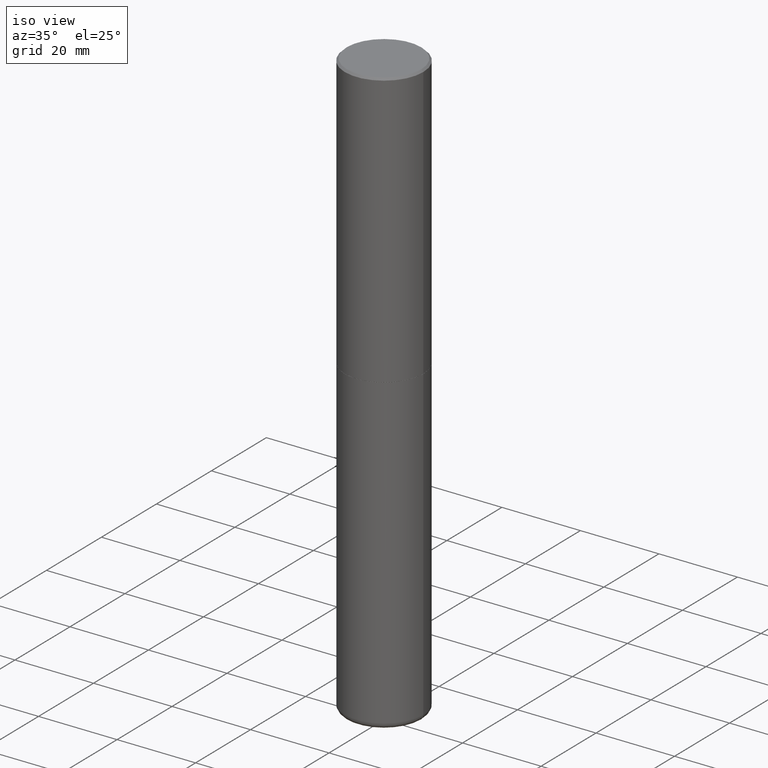
[diagram: clean part render]
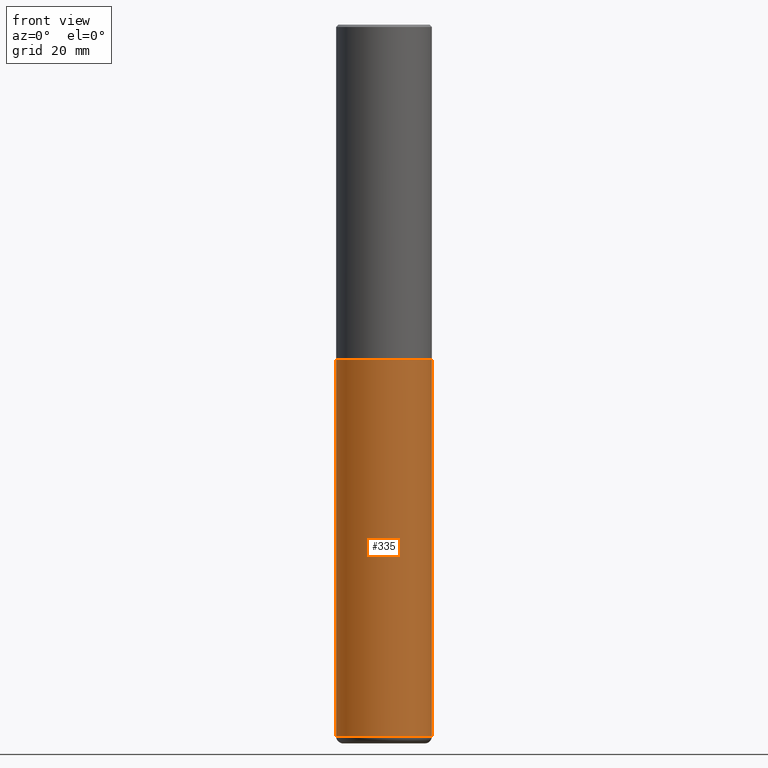
[diagram: tour spotlight — one face highlighted and labeled with its STEP entity id]
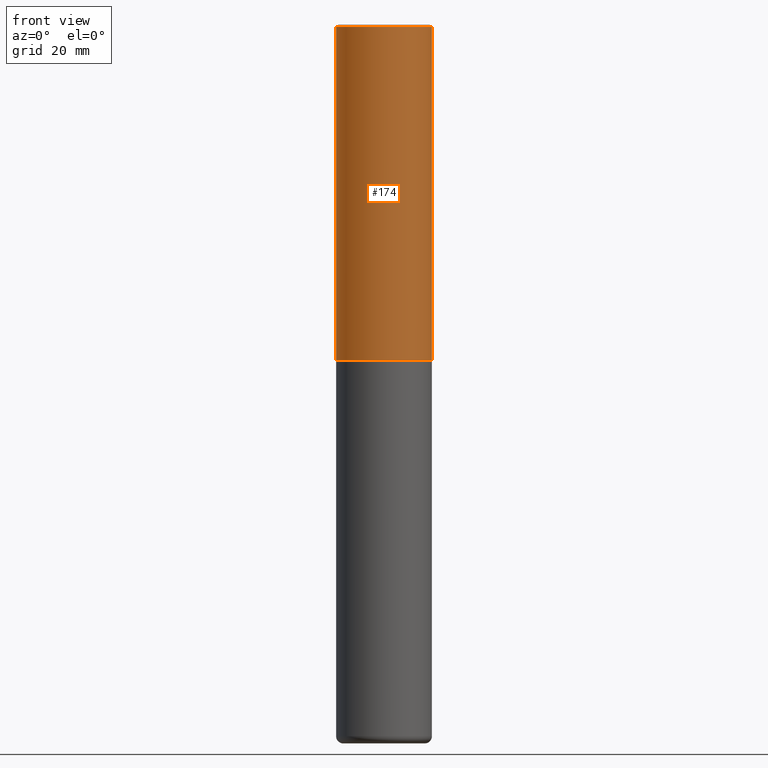
[diagram: tour spotlight — one face highlighted and labeled with its STEP entity id]
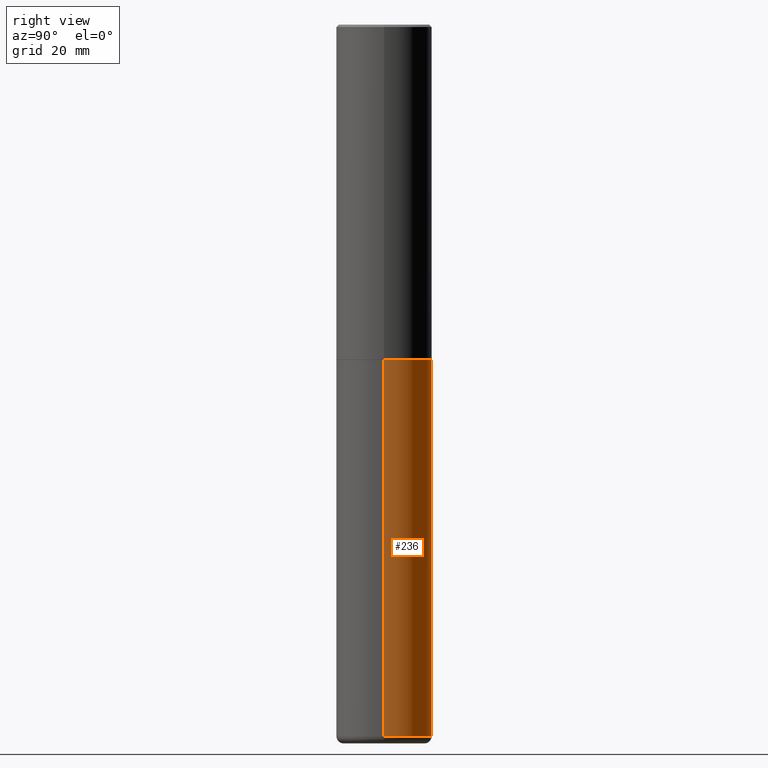
[diagram: tour spotlight — one face highlighted and labeled with its STEP entity id]
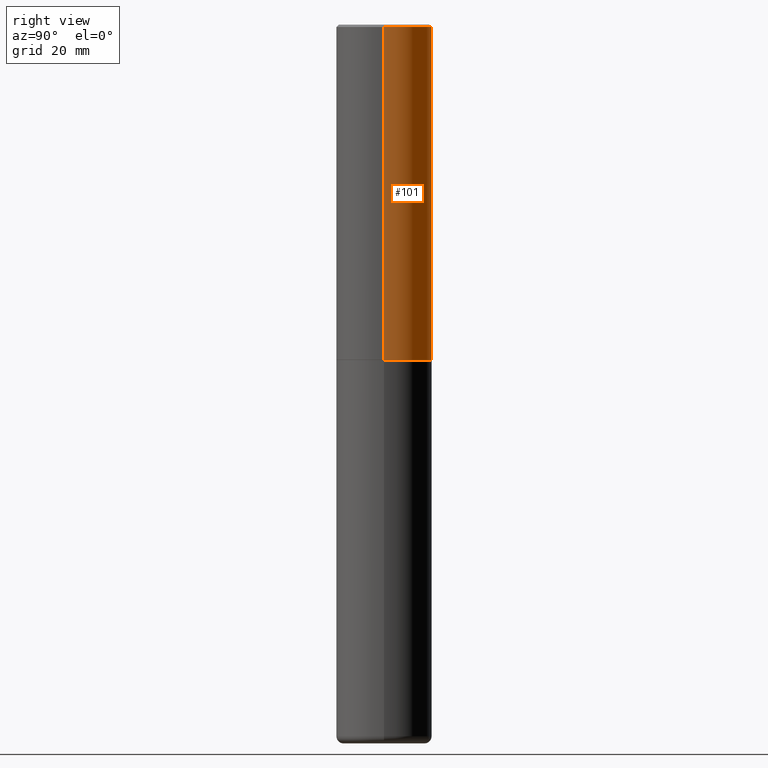
[diagram: tour spotlight — one face highlighted and labeled with its STEP entity id]
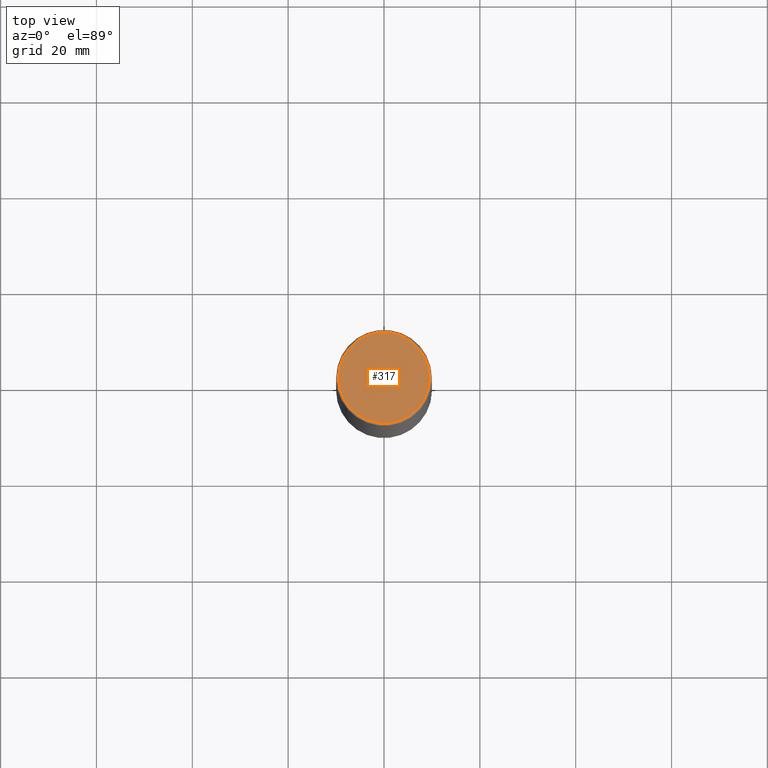
[diagram: tour spotlight — one face highlighted and labeled with its STEP entity id]
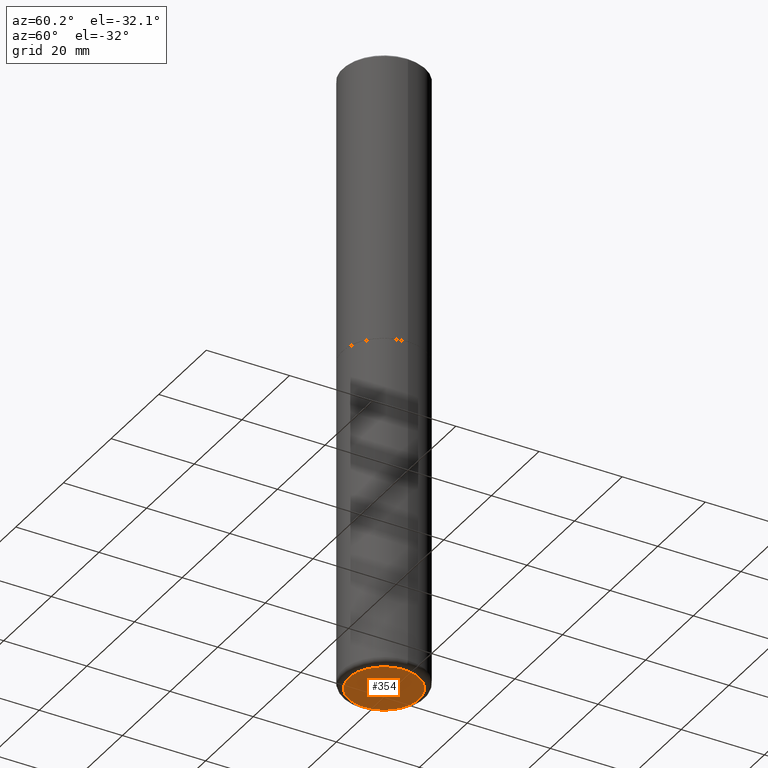
[diagram: tour spotlight — one face highlighted and labeled with its STEP entity id]
A machine part: a face-by-face anatomy tour. The part has 14 B-rep faces; the first image is the clean iso view, then the 6 largest visible faces are spotlighted one at a time (largest first), each with its STEP entity span.

Face 1 — front view, entity #335. In plain terms, the highlighted cylindrical surface (partial cylindrical patch) has radius 10 mm, axis along (-0, 0, 1).
Definition (entity closure, byte-faithful):
#3 = FACE_OUTER_BOUND ( 'NONE', #157, .T. ) ;
#6 = LINE ( 'NONE', #253, #263 ) ;
#11 = CARTESIAN_POINT ( 'NONE',  ( 0.3937000000000000499, -1.237136582792290287E-14, -2.755899999999998240 ) ) ;
#32 = CARTESIAN_POINT ( 'NONE',  ( -0.3937000000000002164, -1.761518974872504126E-14, -5.846399999999999153 ) ) ;
#37 = EDGE_CURVE ( 'NONE', #75, #260, #6, .T. ) ;
#38 = DIRECTION ( 'NONE',  ( 1.000000000000000000, -6.982962677686266711E-15, 0.000000000000000000 ) ) ;
#54 = ORIENTED_EDGE ( 'NONE', *, *, #37, .F. ) ;
#56 = DIRECTION ( 'NONE',  ( 1.000000000000000000, -6.982962677686266711E-15, 4.876176775795935793E-29 ) ) ;
#59 = AXIS2_PLACEMENT_3D ( 'NONE', #134, #235, #105 ) ;
#72 = LINE ( 'NONE', #76, #234 ) ;
#75 = VERTEX_POINT ( 'NONE', #32 ) ;
#76 = CARTESIAN_POINT ( 'NONE',  ( 0.3937000000000001054, -2.749192406205084005E-15, 1.919750796630860452E-29 ) ) ;
#80 = CARTESIAN_POINT ( 'NONE',  ( -0.3937000000000000499, -1.221997820987767425E-14, -2.755899999999998240 ) ) ;
#83 = EDGE_CURVE ( 'NONE', #75, #207, #401, .T. ) ;
#105 = DIRECTION ( 'NONE',  ( 1.000000000000000000, -6.982962677686267499E-15, 0.000000000000000000 ) ) ;
#115 = ORIENTED_EDGE ( 'NONE', *, *, #83, .T. ) ;
#134 = CARTESIAN_POINT ( 'NONE',  ( 6.739467482965614869E-29, -9.622173421717819657E-15, -2.755899999999998240 ) ) ;
#148 = VERTEX_POINT ( 'NONE', #11 ) ;
#151 = CARTESIAN_POINT ( 'NONE',  ( 0.000000000000000000, 0.000000000000000000, 0.000000000000000000 ) ) ;
#157 = EDGE_LOOP ( 'NONE', ( #54, #115, #180, #255 ) ) ;
#180 = ORIENTED_EDGE ( 'NONE', *, *, #410, .T. ) ;
#206 = DIRECTION ( 'NONE',  ( -2.445468806185136877E-29, 3.491481338843145188E-15, 1.000000000000000000 ) ) ;
#207 = VERTEX_POINT ( 'NONE', #243 ) ;
#222 = DIRECTION ( 'NONE',  ( -2.445468806185136597E-29, 3.491481338843145583E-15, 1.000000000000000000 ) ) ;
#231 = CARTESIAN_POINT ( 'NONE',  ( 1.429718882848077913E-28, -2.041259649941256157E-14, -5.846399999999999153 ) ) ;
#234 = VECTOR ( 'NONE', #206, 39.37007874015748143 ) ;
#235 = DIRECTION ( 'NONE',  ( -2.445468806185136597E-29, 3.491481338843145583E-15, 1.000000000000000000 ) ) ;
#243 = CARTESIAN_POINT ( 'NONE',  ( 0.3937000000000002164, -2.316178890561765109E-14, -5.846399999999999153 ) ) ;
#249 = AXIS2_PLACEMENT_3D ( 'NONE', #151, #222, #56 ) ;
#253 = CARTESIAN_POINT ( 'NONE',  ( -0.3937000000000001054, 2.797406750687515181E-15, -1.936584745033357016E-29 ) ) ;
#255 = ORIENTED_EDGE ( 'NONE', *, *, #371, .F. ) ;
#260 = VERTEX_POINT ( 'NONE', #80 ) ;
#263 = VECTOR ( 'NONE', #380, 39.37007874015748143 ) ;
#335 = ADVANCED_FACE ( 'NONE', ( #3 ), #386, .T. ) ;
#356 = AXIS2_PLACEMENT_3D ( 'NONE', #231, #394, #38 ) ;
#371 = EDGE_CURVE ( 'NONE', #260, #148, #385, .T. ) ;
#380 = DIRECTION ( 'NONE',  ( -2.445468806185136877E-29, 3.491481338843145188E-15, 1.000000000000000000 ) ) ;
#385 = CIRCLE ( 'NONE', #59, 0.3937000000000000499 ) ;
#386 = CYLINDRICAL_SURFACE ( 'NONE', #249, 0.3937000000000001054 ) ;
#394 = DIRECTION ( 'NONE',  ( -2.445468806185136597E-29, 3.491481338843145583E-15, 1.000000000000000000 ) ) ;
#401 = CIRCLE ( 'NONE', #356, 0.3937000000000001054 ) ;
#410 = EDGE_CURVE ( 'NONE', #207, #148, #72, .T. ) ;

Face 2 — front view, entity #174. In plain terms, the highlighted cylindrical surface (partial cylindrical patch) has radius 10 mm, axis along (-0, 0, 1).
Definition (entity closure, byte-faithful):
#15 = CARTESIAN_POINT ( 'NONE',  ( 0.3937000000000002164, -2.749192406205084794E-15, 1.919750796630861012E-29 ) ) ;
#66 = DIRECTION ( 'NONE',  ( -2.445468806185136597E-29, 3.491481338843145583E-15, 1.000000000000000000 ) ) ;
#70 = CARTESIAN_POINT ( 'NONE',  ( -0.3937000000000000499, 2.679362779428219918E-15, -0.02000000000000008715 ) ) ;
#81 = EDGE_LOOP ( 'NONE', ( #93, #214, #312, #87 ) ) ;
#87 = ORIENTED_EDGE ( 'NONE', *, *, #177, .F. ) ;
#90 = EDGE_CURVE ( 'NONE', #291, #293, #367, .T. ) ;
#93 = ORIENTED_EDGE ( 'NONE', *, *, #121, .F. ) ;
#104 = FACE_OUTER_BOUND ( 'NONE', #81, .T. ) ;
#107 = DIRECTION ( 'NONE',  ( -2.445468806185136877E-29, 3.491481338843145188E-15, 1.000000000000000000 ) ) ;
#121 = EDGE_CURVE ( 'NONE', #291, #160, #170, .T. ) ;
#137 = DIRECTION ( 'NONE',  ( 1.000000000000000000, -6.982962677686265922E-15, 0.000000000000000000 ) ) ;
#143 = AXIS2_PLACEMENT_3D ( 'NONE', #269, #66, #264 ) ;
#160 = VERTEX_POINT ( 'NONE', #70 ) ;
#170 = LINE ( 'NONE', #199, #391 ) ;
#171 = DIRECTION ( 'NONE',  ( -2.445468806185136597E-29, 3.491481338843145583E-15, 1.000000000000000000 ) ) ;
#174 = ADVANCED_FACE ( 'NONE', ( #104 ), #364, .T. ) ;
#177 = EDGE_CURVE ( 'NONE', #160, #208, #314, .T. ) ;
#199 = CARTESIAN_POINT ( 'NONE',  ( -0.3937000000000002164, 2.797406750687515970E-15, -1.936584745033357576E-29 ) ) ;
#201 = CARTESIAN_POINT ( 'NONE',  ( 0.000000000000000000, 0.000000000000000000, 0.000000000000000000 ) ) ;
#204 = DIRECTION ( 'NONE',  ( -2.445468806185136877E-29, 3.491481338843145188E-15, 1.000000000000000000 ) ) ;
#208 = VERTEX_POINT ( 'NONE', #211 ) ;
#211 = CARTESIAN_POINT ( 'NONE',  ( 0.3937000000000000499, -2.770807688499515734E-15, -0.02000000000000008715 ) ) ;
#214 = ORIENTED_EDGE ( 'NONE', *, *, #90, .T. ) ;
#226 = VECTOR ( 'NONE', #107, 39.37007874015748143 ) ;
#246 = CARTESIAN_POINT ( 'NONE',  ( 0.3937000000000004385, -1.236787434658406144E-14, -2.754899999999998350 ) ) ;
#257 = EDGE_CURVE ( 'NONE', #293, #208, #311, .T. ) ;
#264 = DIRECTION ( 'NONE',  ( 1.000000000000000000, -6.982962677686265922E-15, 0.000000000000000000 ) ) ;
#269 = CARTESIAN_POINT ( 'NONE',  ( 6.737022014159429266E-29, -9.618681940378976650E-15, -2.754899999999998350 ) ) ;
#281 = CARTESIAN_POINT ( 'NONE',  ( -0.3937000000000004385, -2.046849032890400849E-15, -2.754899999999998350 ) ) ;
#291 = VERTEX_POINT ( 'NONE', #281 ) ;
#293 = VERTEX_POINT ( 'NONE', #246 ) ;
#300 = CARTESIAN_POINT ( 'NONE',  ( 4.890937612370294178E-31, -6.982962677686321191E-17, -0.02000000000000008715 ) ) ;
#311 = LINE ( 'NONE', #15, #226 ) ;
#312 = ORIENTED_EDGE ( 'NONE', *, *, #257, .T. ) ;
#314 = CIRCLE ( 'NONE', #374, 0.3937000000000000499 ) ;
#332 = DIRECTION ( 'NONE',  ( 1.000000000000000000, -6.982962677686266711E-15, 4.876176775795935793E-29 ) ) ;
#336 = DIRECTION ( 'NONE',  ( -2.445468806185136597E-29, 3.491481338843145583E-15, 1.000000000000000000 ) ) ;
#364 = CYLINDRICAL_SURFACE ( 'NONE', #407, 0.3937000000000002164 ) ;
#367 = CIRCLE ( 'NONE', #143, 0.3937000000000004385 ) ;
#374 = AXIS2_PLACEMENT_3D ( 'NONE', #300, #171, #137 ) ;
#391 = VECTOR ( 'NONE', #204, 39.37007874015748143 ) ;
#407 = AXIS2_PLACEMENT_3D ( 'NONE', #201, #336, #332 ) ;

Face 3 — right view, entity #236. In plain terms, the highlighted cylindrical surface (partial cylindrical patch) has radius 10 mm, axis along (-0, 0, 1).
Definition (entity closure, byte-faithful):
#6 = LINE ( 'NONE', #253, #263 ) ;
#11 = CARTESIAN_POINT ( 'NONE',  ( 0.3937000000000000499, -1.237136582792290287E-14, -2.755899999999998240 ) ) ;
#13 = CIRCLE ( 'NONE', #270, 0.3937000000000000499 ) ;
#24 = CIRCLE ( 'NONE', #321, 0.3937000000000001054 ) ;
#32 = CARTESIAN_POINT ( 'NONE',  ( -0.3937000000000002164, -1.761518974872504126E-14, -5.846399999999999153 ) ) ;
#37 = EDGE_CURVE ( 'NONE', #75, #260, #6, .T. ) ;
#72 = LINE ( 'NONE', #76, #234 ) ;
#75 = VERTEX_POINT ( 'NONE', #32 ) ;
#76 = CARTESIAN_POINT ( 'NONE',  ( 0.3937000000000001054, -2.749192406205084005E-15, 1.919750796630860452E-29 ) ) ;
#80 = CARTESIAN_POINT ( 'NONE',  ( -0.3937000000000000499, -1.221997820987767425E-14, -2.755899999999998240 ) ) ;
#109 = DIRECTION ( 'NONE',  ( -2.445468806185136597E-29, 3.491481338843145583E-15, 1.000000000000000000 ) ) ;
#139 = ORIENTED_EDGE ( 'NONE', *, *, #396, .T. ) ;
#141 = CARTESIAN_POINT ( 'NONE',  ( 1.429718882848077913E-28, -2.041259649941256157E-14, -5.846399999999999153 ) ) ;
#148 = VERTEX_POINT ( 'NONE', #11 ) ;
#149 = DIRECTION ( 'NONE',  ( 1.000000000000000000, -6.982962677686267499E-15, 0.000000000000000000 ) ) ;
#176 = FACE_OUTER_BOUND ( 'NONE', #245, .T. ) ;
#179 = AXIS2_PLACEMENT_3D ( 'NONE', #315, #406, #397 ) ;
#203 = DIRECTION ( 'NONE',  ( 1.000000000000000000, -6.982962677686266711E-15, 0.000000000000000000 ) ) ;
#206 = DIRECTION ( 'NONE',  ( -2.445468806185136877E-29, 3.491481338843145188E-15, 1.000000000000000000 ) ) ;
#207 = VERTEX_POINT ( 'NONE', #243 ) ;
#234 = VECTOR ( 'NONE', #206, 39.37007874015748143 ) ;
#236 = ADVANCED_FACE ( 'NONE', ( #176 ), #279, .T. ) ;
#243 = CARTESIAN_POINT ( 'NONE',  ( 0.3937000000000002164, -2.316178890561765109E-14, -5.846399999999999153 ) ) ;
#245 = EDGE_LOOP ( 'NONE', ( #139, #372, #316, #331 ) ) ;
#253 = CARTESIAN_POINT ( 'NONE',  ( -0.3937000000000001054, 2.797406750687515181E-15, -1.936584745033357016E-29 ) ) ;
#260 = VERTEX_POINT ( 'NONE', #80 ) ;
#263 = VECTOR ( 'NONE', #380, 39.37007874015748143 ) ;
#270 = AXIS2_PLACEMENT_3D ( 'NONE', #373, #343, #149 ) ;
#279 = CYLINDRICAL_SURFACE ( 'NONE', #179, 0.3937000000000001054 ) ;
#296 = EDGE_CURVE ( 'NONE', #148, #260, #13, .T. ) ;
#315 = CARTESIAN_POINT ( 'NONE',  ( 0.000000000000000000, 0.000000000000000000, 0.000000000000000000 ) ) ;
#316 = ORIENTED_EDGE ( 'NONE', *, *, #296, .F. ) ;
#321 = AXIS2_PLACEMENT_3D ( 'NONE', #141, #109, #203 ) ;
#331 = ORIENTED_EDGE ( 'NONE', *, *, #410, .F. ) ;
#343 = DIRECTION ( 'NONE',  ( -2.445468806185136597E-29, 3.491481338843145583E-15, 1.000000000000000000 ) ) ;
#372 = ORIENTED_EDGE ( 'NONE', *, *, #37, .T. ) ;
#373 = CARTESIAN_POINT ( 'NONE',  ( 6.739467482965614869E-29, -9.622173421717819657E-15, -2.755899999999998240 ) ) ;
#380 = DIRECTION ( 'NONE',  ( -2.445468806185136877E-29, 3.491481338843145188E-15, 1.000000000000000000 ) ) ;
#396 = EDGE_CURVE ( 'NONE', #207, #75, #24, .T. ) ;
#397 = DIRECTION ( 'NONE',  ( 1.000000000000000000, -6.982962677686266711E-15, 4.876176775795935793E-29 ) ) ;
#406 = DIRECTION ( 'NONE',  ( -2.445468806185136597E-29, 3.491481338843145583E-15, 1.000000000000000000 ) ) ;
#410 = EDGE_CURVE ( 'NONE', #207, #148, #72, .T. ) ;

Face 4 — right view, entity #101. In plain terms, the highlighted cylindrical surface (partial cylindrical patch) has radius 10 mm, axis along (-0, 0, 1).
Definition (entity closure, byte-faithful):
#15 = CARTESIAN_POINT ( 'NONE',  ( 0.3937000000000002164, -2.749192406205084794E-15, 1.919750796630861012E-29 ) ) ;
#29 = CIRCLE ( 'NONE', #34, 0.3937000000000004385 ) ;
#34 = AXIS2_PLACEMENT_3D ( 'NONE', #45, #182, #74 ) ;
#45 = CARTESIAN_POINT ( 'NONE',  ( 6.737022014159429266E-29, -9.618681940378976650E-15, -2.754899999999998350 ) ) ;
#53 = EDGE_CURVE ( 'NONE', #208, #160, #142, .T. ) ;
#70 = CARTESIAN_POINT ( 'NONE',  ( -0.3937000000000000499, 2.679362779428219918E-15, -0.02000000000000008715 ) ) ;
#74 = DIRECTION ( 'NONE',  ( 1.000000000000000000, -6.982962677686265922E-15, 0.000000000000000000 ) ) ;
#100 = DIRECTION ( 'NONE',  ( -2.445468806185136597E-29, 3.491481338843145583E-15, 1.000000000000000000 ) ) ;
#101 = ADVANCED_FACE ( 'NONE', ( #175 ), #230, .T. ) ;
#107 = DIRECTION ( 'NONE',  ( -2.445468806185136877E-29, 3.491481338843145188E-15, 1.000000000000000000 ) ) ;
#121 = EDGE_CURVE ( 'NONE', #291, #160, #170, .T. ) ;
#122 = ORIENTED_EDGE ( 'NONE', *, *, #121, .T. ) ;
#133 = DIRECTION ( 'NONE',  ( -2.445468806185136597E-29, 3.491481338843145583E-15, 1.000000000000000000 ) ) ;
#135 = DIRECTION ( 'NONE',  ( 1.000000000000000000, -6.982962677686265922E-15, 0.000000000000000000 ) ) ;
#142 = CIRCLE ( 'NONE', #299, 0.3937000000000000499 ) ;
#160 = VERTEX_POINT ( 'NONE', #70 ) ;
#165 = ORIENTED_EDGE ( 'NONE', *, *, #257, .F. ) ;
#170 = LINE ( 'NONE', #199, #391 ) ;
#175 = FACE_OUTER_BOUND ( 'NONE', #258, .T. ) ;
#182 = DIRECTION ( 'NONE',  ( -2.445468806185136597E-29, 3.491481338843145583E-15, 1.000000000000000000 ) ) ;
#199 = CARTESIAN_POINT ( 'NONE',  ( -0.3937000000000002164, 2.797406750687515970E-15, -1.936584745033357576E-29 ) ) ;
#204 = DIRECTION ( 'NONE',  ( -2.445468806185136877E-29, 3.491481338843145188E-15, 1.000000000000000000 ) ) ;
#208 = VERTEX_POINT ( 'NONE', #211 ) ;
#211 = CARTESIAN_POINT ( 'NONE',  ( 0.3937000000000000499, -2.770807688499515734E-15, -0.02000000000000008715 ) ) ;
#216 = EDGE_CURVE ( 'NONE', #293, #291, #29, .T. ) ;
#226 = VECTOR ( 'NONE', #107, 39.37007874015748143 ) ;
#230 = CYLINDRICAL_SURFACE ( 'NONE', #349, 0.3937000000000002164 ) ;
#244 = ORIENTED_EDGE ( 'NONE', *, *, #216, .T. ) ;
#246 = CARTESIAN_POINT ( 'NONE',  ( 0.3937000000000004385, -1.236787434658406144E-14, -2.754899999999998350 ) ) ;
#248 = ORIENTED_EDGE ( 'NONE', *, *, #53, .F. ) ;
#257 = EDGE_CURVE ( 'NONE', #293, #208, #311, .T. ) ;
#258 = EDGE_LOOP ( 'NONE', ( #244, #122, #248, #165 ) ) ;
#267 = DIRECTION ( 'NONE',  ( 1.000000000000000000, -6.982962677686266711E-15, 4.876176775795935793E-29 ) ) ;
#281 = CARTESIAN_POINT ( 'NONE',  ( -0.3937000000000004385, -2.046849032890400849E-15, -2.754899999999998350 ) ) ;
#291 = VERTEX_POINT ( 'NONE', #281 ) ;
#293 = VERTEX_POINT ( 'NONE', #246 ) ;
#299 = AXIS2_PLACEMENT_3D ( 'NONE', #306, #133, #135 ) ;
#306 = CARTESIAN_POINT ( 'NONE',  ( 4.890937612370294178E-31, -6.982962677686321191E-17, -0.02000000000000008715 ) ) ;
#311 = LINE ( 'NONE', #15, #226 ) ;
#349 = AXIS2_PLACEMENT_3D ( 'NONE', #360, #100, #267 ) ;
#360 = CARTESIAN_POINT ( 'NONE',  ( 0.000000000000000000, 0.000000000000000000, 0.000000000000000000 ) ) ;
#391 = VECTOR ( 'NONE', #204, 39.37007874015748143 ) ;

Face 5 — top view, entity #317. In plain terms, the highlighted planar face has unit normal (0, -0, -1).
Definition (entity closure, byte-faithful):
#26 = CARTESIAN_POINT ( 'NONE',  ( 2.609533152651357803E-15, 0.3737000000000000322, -1.270618476404880419E-15 ) ) ;
#61 = DIRECTION ( 'NONE',  ( -1.000000000000000000, 6.982962677686265922E-15, -4.876176775795935793E-29 ) ) ;
#73 = AXIS2_PLACEMENT_3D ( 'NONE', #26, #163, #61 ) ;
#79 = VERTEX_POINT ( 'NONE', #333 ) ;
#112 = DIRECTION ( 'NONE',  ( -2.445468806185136597E-29, 3.491481338843145583E-15, 1.000000000000000000 ) ) ;
#113 = CARTESIAN_POINT ( 'NONE',  ( 0.3737000000000000322, -2.667287895133368753E-15, 6.829619984162503241E-17 ) ) ;
#163 = DIRECTION ( 'NONE',  ( 2.438088387897960049E-29, -3.491481338843145188E-15, -1.000000000000000000 ) ) ;
#189 = EDGE_CURVE ( 'NONE', #79, #283, #210, .T. ) ;
#210 = CIRCLE ( 'NONE', #218, 0.3737000000000000322 ) ;
#212 = ORIENTED_EDGE ( 'NONE', *, *, #403, .T. ) ;
#218 = AXIS2_PLACEMENT_3D ( 'NONE', #272, #266, #240 ) ;
#225 = PLANE ( 'NONE',  #73 ) ;
#240 = DIRECTION ( 'NONE',  ( 1.000000000000000000, -6.982962677686266711E-15, 4.877734241229875126E-29 ) ) ;
#266 = DIRECTION ( 'NONE',  ( -2.445468806185136597E-29, 3.491481338843145583E-15, 1.000000000000000000 ) ) ;
#272 = CARTESIAN_POINT ( 'NONE',  ( -1.670162262936351711E-45, 2.384549072608715520E-31, 6.829619984160658046E-17 ) ) ;
#283 = VERTEX_POINT ( 'NONE', #113 ) ;
#289 = ORIENTED_EDGE ( 'NONE', *, *, #189, .T. ) ;
#294 = AXIS2_PLACEMENT_3D ( 'NONE', #337, #112, #399 ) ;
#317 = ADVANCED_FACE ( 'NONE', ( #325 ), #225, .F. ) ;
#325 = FACE_OUTER_BOUND ( 'NONE', #389, .T. ) ;
#333 = CARTESIAN_POINT ( 'NONE',  ( -0.3737000000000000322, 2.644447966039789058E-15, 6.829619984158820247E-17 ) ) ;
#337 = CARTESIAN_POINT ( 'NONE',  ( -1.670162262936351711E-45, 2.384549072608715520E-31, 6.829619984160658046E-17 ) ) ;
#389 = EDGE_LOOP ( 'NONE', ( #289, #212 ) ) ;
#399 = DIRECTION ( 'NONE',  ( 1.000000000000000000, -6.982962677686266711E-15, 4.877734241229875126E-29 ) ) ;
#402 = CIRCLE ( 'NONE', #294, 0.3737000000000000322 ) ;
#403 = EDGE_CURVE ( 'NONE', #283, #79, #402, .T. ) ;

Face 6 — auxiliary view, entity #354. In plain terms, the highlighted planar face has unit normal (0, -0, -1).
Definition (entity closure, byte-faithful):
#2 = EDGE_CURVE ( 'NONE', #274, #20, #152, .T. ) ;
#20 = VERTEX_POINT ( 'NONE', #57 ) ;
#28 = ORIENTED_EDGE ( 'NONE', *, *, #2, .F. ) ;
#57 = CARTESIAN_POINT ( 'NONE',  ( -0.3346000000000000085, -1.792832840070497370E-14, -5.905499999999999972 ) ) ;
#62 = DIRECTION ( 'NONE',  ( -2.445468806185136597E-29, 3.491481338843145583E-15, 1.000000000000000000 ) ) ;
#65 = DIRECTION ( 'NONE',  ( -2.445468806185136597E-29, 3.491481338843145583E-15, 1.000000000000000000 ) ) ;
#103 = DIRECTION ( 'NONE',  ( 2.438088387897960049E-29, -3.491481338843145188E-15, -1.000000000000000000 ) ) ;
#117 = CIRCLE ( 'NONE', #362, 0.3346000000000000085 ) ;
#129 = DIRECTION ( 'NONE',  ( 1.000000000000000000, -6.982962677686269866E-15, 0.000000000000000000 ) ) ;
#131 = CARTESIAN_POINT ( 'NONE',  ( 1.444171603492632270E-28, -2.061894304653819197E-14, -5.905499999999999972 ) ) ;
#147 = CARTESIAN_POINT ( 'NONE',  ( 0.3346000000000000085, -2.295544235849201754E-14, -5.905499999999999972 ) ) ;
#152 = CIRCLE ( 'NONE', #277, 0.3346000000000000085 ) ;
#162 = EDGE_CURVE ( 'NONE', #20, #274, #117, .T. ) ;
#186 = EDGE_LOOP ( 'NONE', ( #28, #378 ) ) ;
#187 = DIRECTION ( 'NONE',  ( 1.000000000000000000, -6.982962677686269866E-15, 0.000000000000000000 ) ) ;
#195 = FACE_OUTER_BOUND ( 'NONE', #186, .T. ) ;
#232 = CARTESIAN_POINT ( 'NONE',  ( 1.444171603492632270E-28, -2.061894304653819197E-14, -5.905499999999999972 ) ) ;
#262 = DIRECTION ( 'NONE',  ( -1.000000000000000000, 6.982962677686265922E-15, -4.876176775795935793E-29 ) ) ;
#274 = VERTEX_POINT ( 'NONE', #147 ) ;
#277 = AXIS2_PLACEMENT_3D ( 'NONE', #330, #62, #187 ) ;
#288 = AXIS2_PLACEMENT_3D ( 'NONE', #232, #103, #262 ) ;
#301 = PLANE ( 'NONE',  #288 ) ;
#330 = CARTESIAN_POINT ( 'NONE',  ( 1.444171603492632270E-28, -2.061894304653819197E-14, -5.905499999999999972 ) ) ;
#354 = ADVANCED_FACE ( 'NONE', ( #195 ), #301, .T. ) ;
#362 = AXIS2_PLACEMENT_3D ( 'NONE', #131, #65, #129 ) ;
#378 = ORIENTED_EDGE ( 'NONE', *, *, #162, .F. ) ;